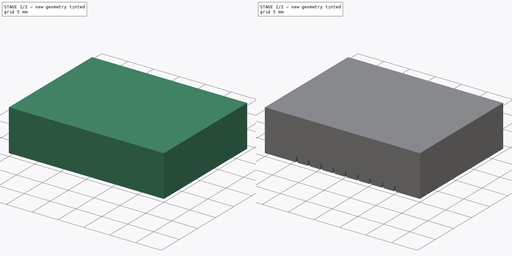
[diagram: build sequence overview — one tinted view per stage of 2, left to right]
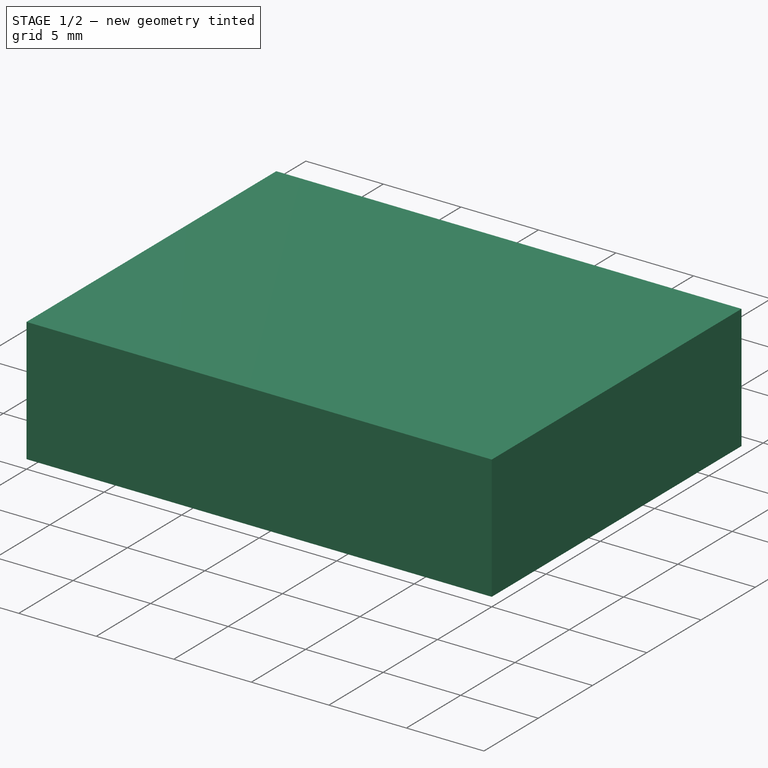
[diagram: stage 1 of 2 — iso view after this stage's code; geometry added in this stage tinted green]
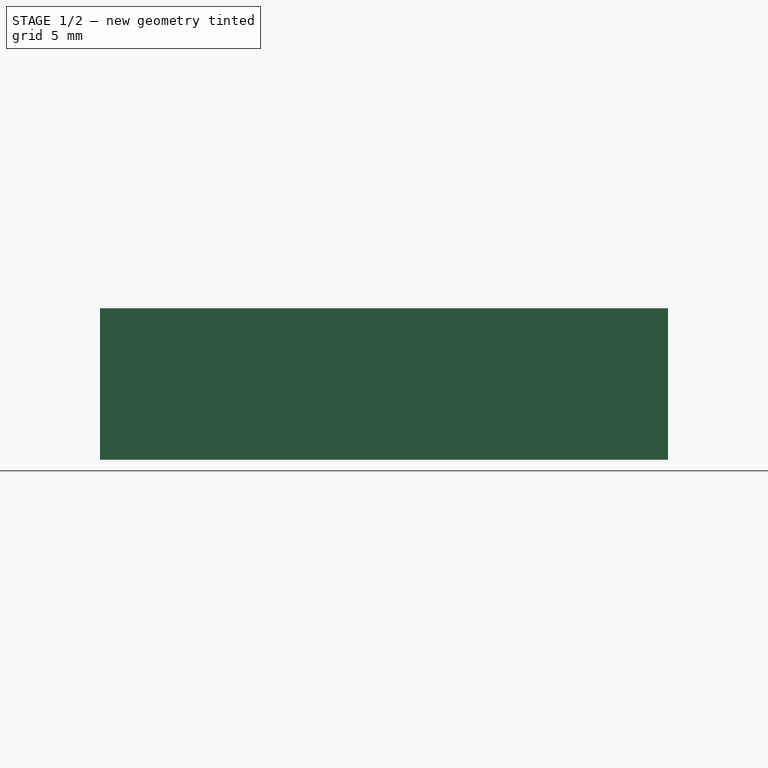
[diagram: stage 1 of 2 — front view after this stage's code; geometry added in this stage tinted green]
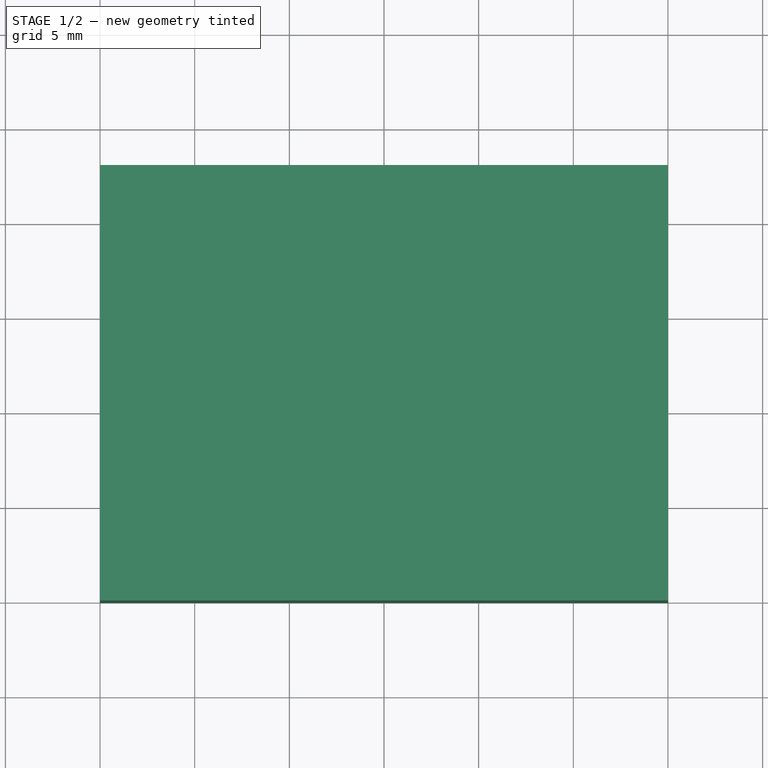
[diagram: stage 1 of 2 — top view after this stage's code; geometry added in this stage tinted green]
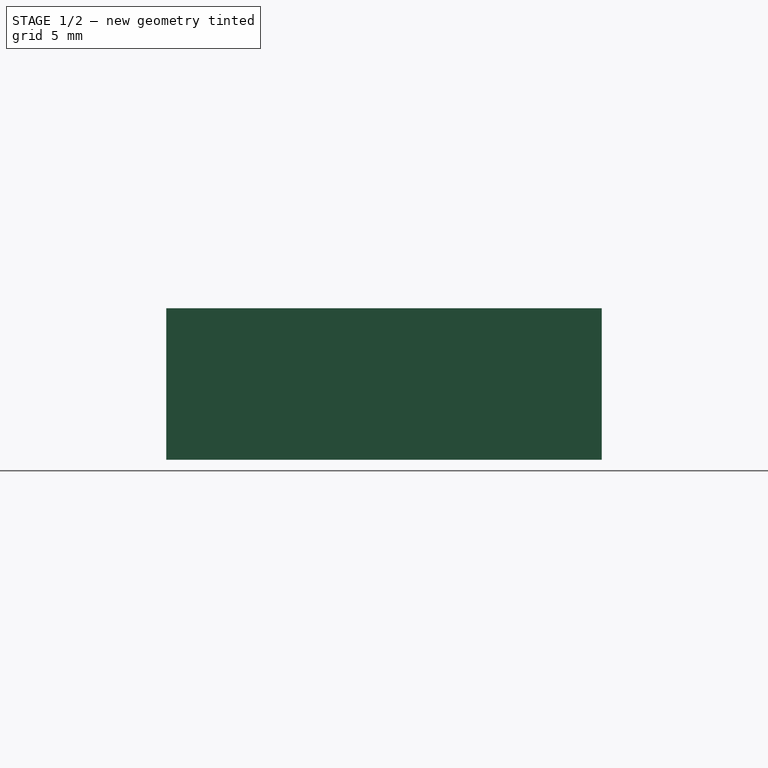
[diagram: stage 1 of 2 — right view after this stage's code; geometry added in this stage tinted green]
FCSTD DOCUMENT  (FreeCAD 0.18.1R)
Label: Slice_anchor_1.9mm
License: All rights reserved
LicenseURL: http://en.wikipedia.org/wiki/All_rights_reserved
objects: Sketcher::SketchObject×3, PartDesign::Pocket×2, PartDesign::Pad×1, PartDesign::LinearPattern×1, PartDesign::Body×1
note: 11 computed .brp shape members not serialized (recipe doc carries the construction recipe); baked Part::Feature solids carry a one-line shape summary decoded from their .brp

FEATURE [Sketcher::SketchObject] Sketch  label="main platform001"
  MapMode = 5
  Support = -> [XY_Plane]
  sketch-geometry (4):
    g0: LineSegment StartX=0 StartY=0 StartZ=0 EndX=30 EndY=0 EndZ=0
    g1: LineSegment StartX=30 StartY=0 StartZ=0 EndX=30 EndY=23 EndZ=0
    g2: LineSegment StartX=30 StartY=23 StartZ=0 EndX=0 EndY=23 EndZ=0
    g3: LineSegment StartX=0 StartY=23 StartZ=0 EndX=0 EndY=0 EndZ=0
  constraints (11):
    c: Coincident(g0,g1)
    c: Coincident(g1,g2)
    c: Coincident(g2,g3)
    c: Coincident(g3,g0)
    c: Horizontal(g0)
    c: Horizontal(g2)
    c: Vertical(g1)
    c: Vertical(g3)
    c: Coincident(g0,g-1)
    c: Distance(g3) = 23
    c: Distance(g0) = 30
FEATURE [Sketcher::SketchObject] Sketch001  label="main chamber001"
  MapMode = 5
  Support = -> [XY_Plane]
  sketch-geometry (8):
    g0: ArcOfCircle CenterX=15 CenterY=14 CenterZ=0 NormalX=0 NormalY=0 NormalZ=1 AngleXU=0 Radius=6 StartAngle=1.05366 EndAngle=2.10086
    g1: ArcOfCircle CenterX=15 CenterY=10.75 CenterZ=0 NormalX=0 NormalY=0 NormalZ=1 AngleXU=0 Radius=6 StartAngle=4.25121 EndAngle=5.29841
    g2: ArcOfCircle CenterX=5.75 CenterY=12.5 CenterZ=0 NormalX=0 NormalY=0 NormalZ=1 AngleXU=0 Radius=2 StartAngle=2.59976 EndAngle=3.64695
    g3: ArcOfCircle CenterX=24.25 CenterY=12.5 CenterZ=0 NormalX=0 NormalY=0 NormalZ=1 AngleXU=0 Radius=2 StartAngle=5.77782 EndAngle=6.82502
    g4: LineSegment StartX=11.9665 StartY=19.1767 StartZ=0 EndX=4.03647 EndY=13.5314 EndZ=0
    g5: LineSegment StartX=4 StartY=11.5318 StartZ=0 EndX=12.33 EndY=5.37682 EndZ=0
    g6: LineSegment StartX=18.3183 StartY=5.75112 StartZ=0 EndX=26 EndY=11.5318 EndZ=0
    g7: LineSegment StartX=25.9635 StartY=13.5314 StartZ=0 EndX=17.9664 EndY=19.2154 EndZ=0
  constraints (27):
    c: DistanceX(g-1,g0) = 15
    c: Vertical(g0,g1)
    c: Radius(g0) = 6
    c: Equal(g0,g1)
    c: Angle(g0) = 1.0472
    c: Angle(g1) = 1.0472
    c: DistanceY(g1,g0) = 3.25
    c: DistanceY(g-1,g1) = 10.75
    c: DistanceX(g2,g3) = 18.5
    c: Radius(g2) = 2
    c: Equal(g2,g3)
    c: Angle(g3) = 1.0472
    c: Angle(g2) = 1.0472
    c: Horizontal(g3,g2)
    c: Horizontal(g2,g3)
    c: DistanceY(g-1,g2) = 12.5
    c: DistanceX(g-1,g2) = 5.75
    c: Coincident(g4,g0)
    c: Coincident(g4,g2)
    c: Coincident(g5,g2)
    c: Coincident(g5,g1)
    c: Coincident(g6,g1)
    c: Coincident(g6,g3)
    c: Coincident(g7,g3)
    c: Coincident(g7,g0)
    c: DistanceX(g-1,g1) = 12.33
    c: DistanceX(g-1,g2) = 4
FEATURE [PartDesign::Pad] Pad002  label="main platform"
  Length = 8
  Length2 = 100
  Profile = -> Sketch
  Type = 0
FEATURE [PartDesign::Pocket] Pocket001  label="main chamber"
  BaseFeature = -> Pad002
  Length = 1.2
  Length2 = 100
  Profile = -> Sketch001
  Reversed = true
  Type = 0
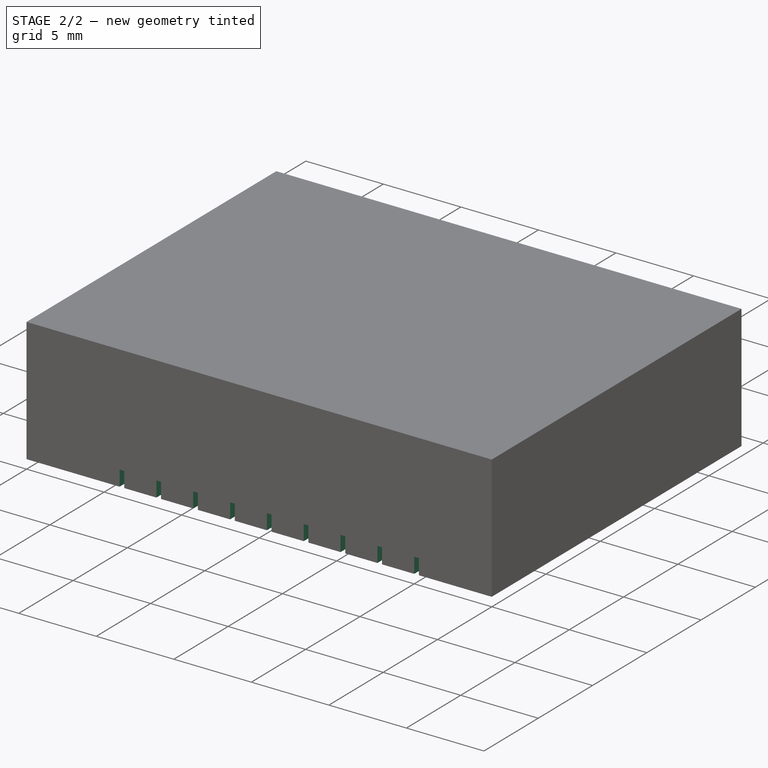
[diagram: stage 2 of 2 — iso view after this stage's code; geometry added in this stage tinted green]
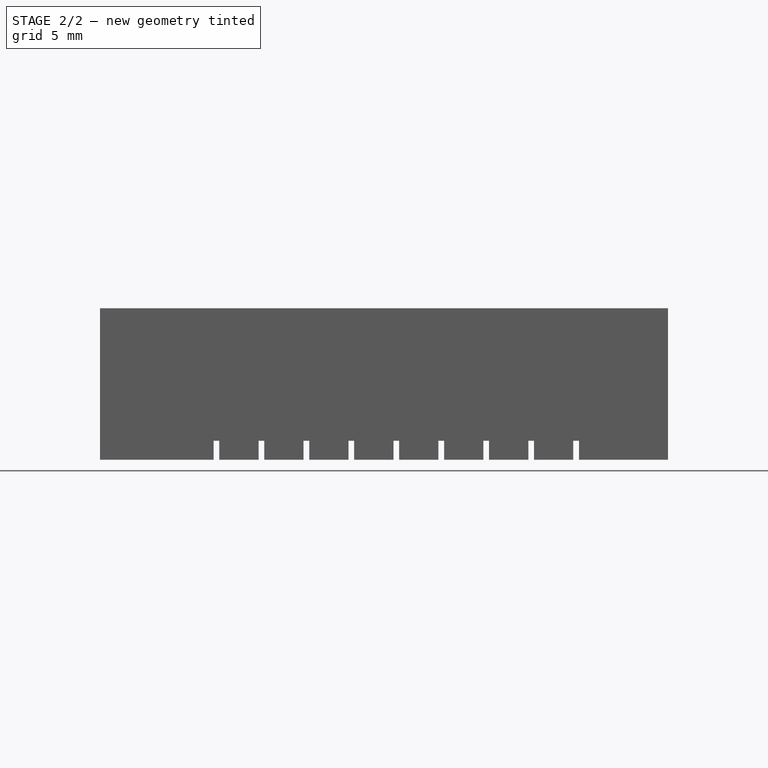
[diagram: stage 2 of 2 — front view after this stage's code; geometry added in this stage tinted green]
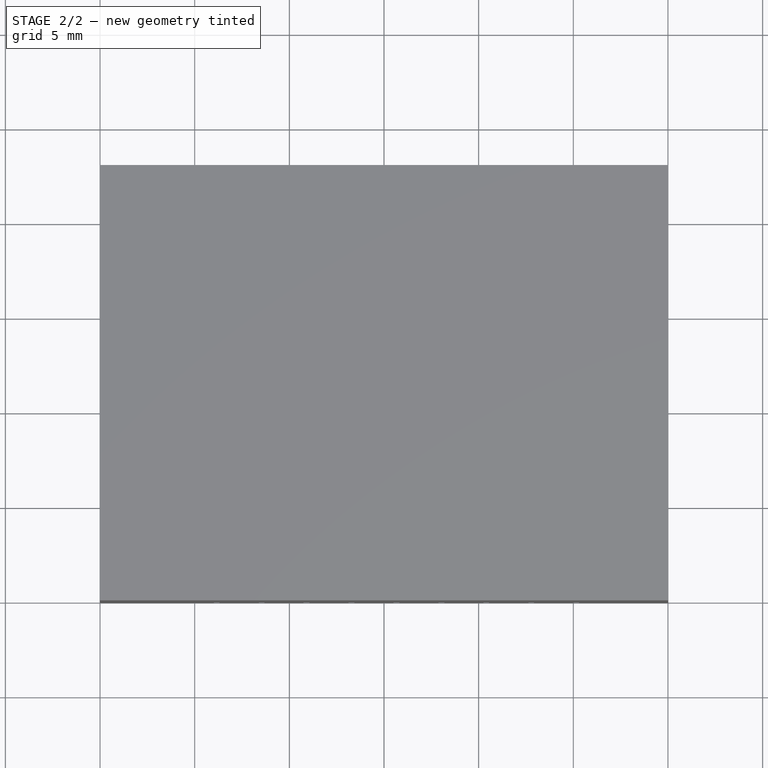
[diagram: stage 2 of 2 — top view after this stage's code; geometry added in this stage tinted green]
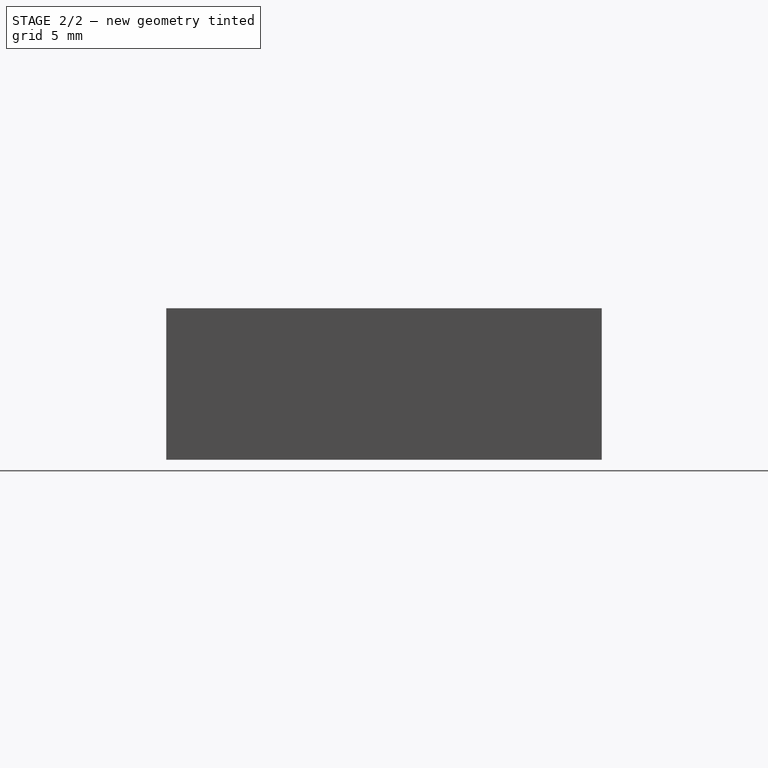
[diagram: stage 2 of 2 — right view after this stage's code; geometry added in this stage tinted green]
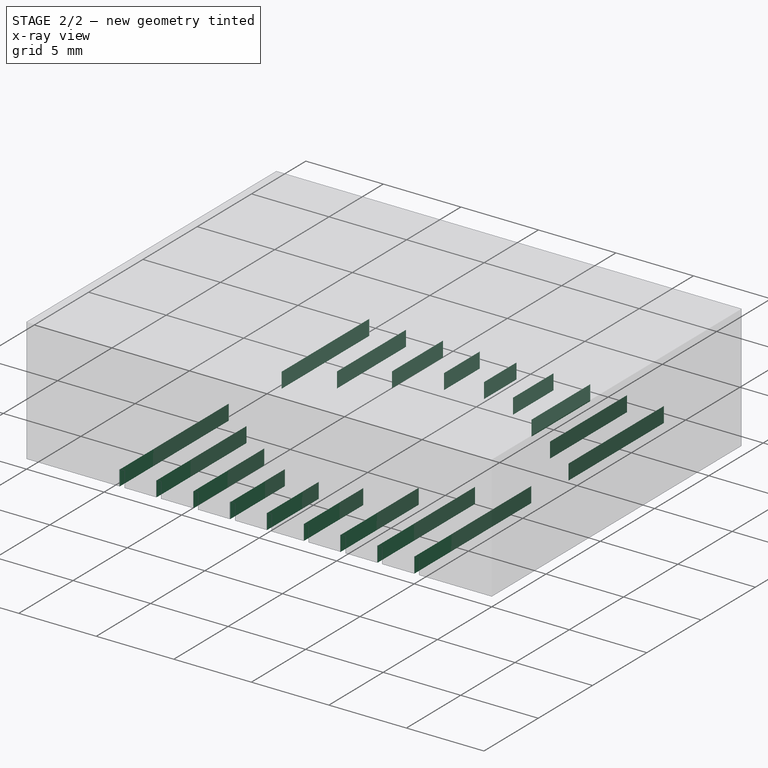
[diagram: stage 2 of 2 — x-ray composite at the iso view; earlier geometry ghosted, this stage's added geometry solid]
FEATURE [Sketcher::SketchObject] Sketch002
  MapMode = 5
  Support = -> [XY_Plane]
  sketch-geometry (4):
    g0: LineSegment StartX=6 StartY=23 StartZ=0 EndX=6.3 EndY=23 EndZ=0
    g1: LineSegment StartX=6.3 StartY=23 StartZ=0 EndX=6.3 EndY=0 EndZ=0
    g2: LineSegment StartX=6.3 StartY=0 StartZ=0 EndX=6 EndY=0 EndZ=0
    g3: LineSegment StartX=6 StartY=0 StartZ=0 EndX=6 EndY=23 EndZ=0
  constraints (12):
    c: Coincident(g0,g1)
    c: Coincident(g1,g2)
    c: Coincident(g2,g3)
    c: Coincident(g3,g0)
    c: Horizontal(g0)
    c: Horizontal(g2)
    c: Vertical(g1)
    c: Vertical(g3)
    c: DistanceX(g2,g1) = 0.3
    c: DistanceX(g-1,g2) = 6
    c: DistanceY(g-1,g2) = 0
    c: DistanceY(g-1,g0) = 23
FEATURE [PartDesign::Pocket] Pocket
  BaseFeature = -> Pocket001
  Length = 1
  Length2 = 100
  Profile = -> Sketch002
  Reversed = true
  Type = 0
FEATURE [PartDesign::LinearPattern] LinearPattern
  BaseFeature = -> Pocket
  Direction = -> X_Axis
  Length = 19
  Occurrences = 9
  Originals = -> [Pocket]
FEATURE [PartDesign::Body] Body
  Group = -> [Sketch,Sketch001,Pad002,Pocket001,Sketch002,Pocket,LinearPattern]
  Origin = -> Origin
  Tip = -> LinearPattern
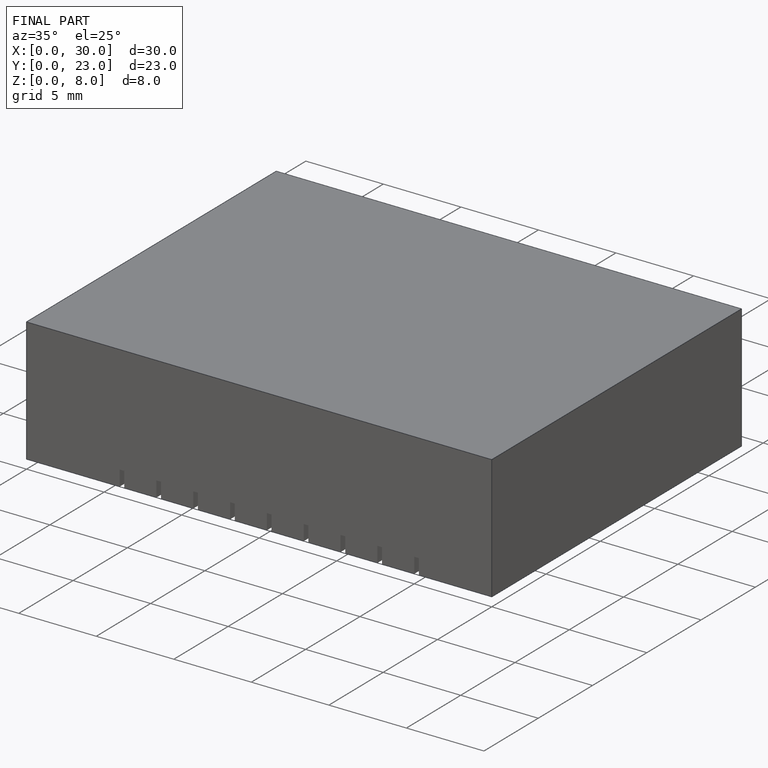
[diagram: finished part — iso view with bounding-box wireframe]
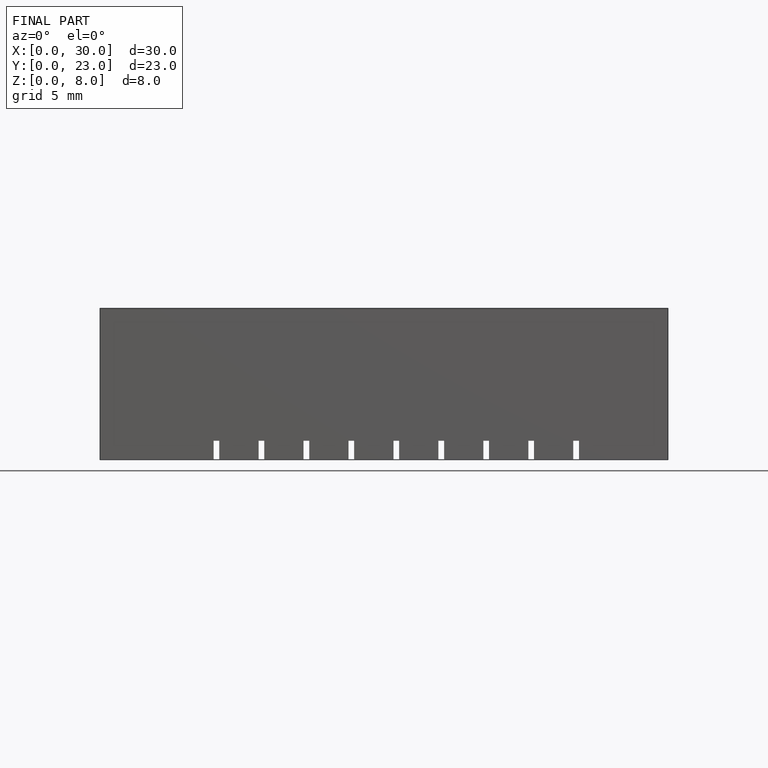
[diagram: finished part — front view with bounding-box wireframe]
